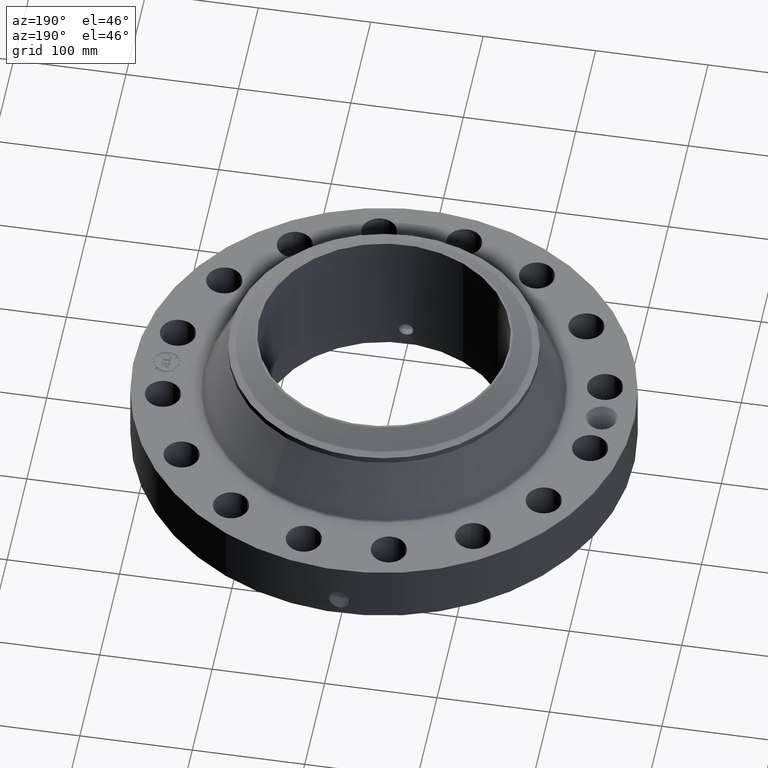
[diagram: clean part render]
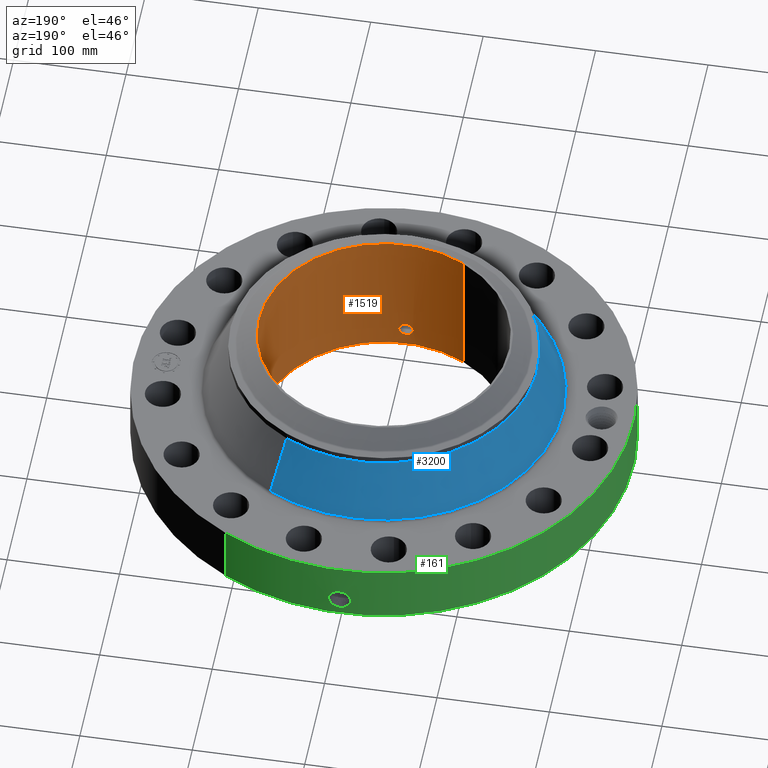
[diagram: same view with three faces highlighted in distinct colors, each labeled with its STEP entity id]
A machine part, auxiliary view with three faces highlighted in distinct colors.
Their STEP definitions:

[orange] entity #1519 — the highlighted cylindrical surface (partial cylindrical patch) has radius 111.125 mm, axis along (0, 0, -1).
#250=AXIS2_PLACEMENT_3D('Circle Axis2P3D',#248,#249,$) ;
#1450=AXIS2_PLACEMENT_3D('Cylinder Axis2P3D',#1447,#1448,#1449) ;
#1454=AXIS2_PLACEMENT_3D('Circle Axis2P3D',#1452,#1453,$) ;
#248=CARTESIAN_POINT('Axis2P3D Location',(0.,0.,0.250000000001)) ;
#252=CARTESIAN_POINT('Vertex',(2.0974867314,3.83942370829,0.250000000001)) ;
#254=CARTESIAN_POINT('Vertex',(-2.0974867314,-3.83942370829,0.250000000001)) ;
#1447=CARTESIAN_POINT('Axis2P3D Location',(0.,0.,2.69000000001)) ;
#1452=CARTESIAN_POINT('Axis2P3D Location',(0.,0.,5.13000000002)) ;
#1456=CARTESIAN_POINT('Vertex',(2.0974867314,3.83942370829,5.13000000002)) ;
#1458=CARTESIAN_POINT('Vertex',(-2.0974867314,-3.83942370829,5.13000000002)) ;
#1461=CARTESIAN_POINT('Line Origine',(2.0974867314,3.83942370829,2.69000000001)) ;
#1466=CARTESIAN_POINT('Line Origine',(-2.0974867314,-3.83942370829,2.69000000001)) ;
#1478=CARTESIAN_POINT('Control Point',(0.219395640473,-4.3694954575,0.820143615352)) ;
#1479=CARTESIAN_POINT('Control Point',(0.206921825538,-4.37012177709,0.79731045027)) ;
#1480=CARTESIAN_POINT('Control Point',(0.19147882994,-4.37085255723,0.776102242842)) ;
#1481=CARTESIAN_POINT('Control Point',(0.173346694087,-4.3716313096,0.757031420525)) ;
#1482=CARTESIAN_POINT('Control Point',(0.112147067857,-4.3738833864,0.707558297666)) ;
#1483=CARTESIAN_POINT('Control Point',(0.0350000945359,-4.37534654876,0.684030761429)) ;
#1484=CARTESIAN_POINT('Control Point',(-0.0195410405221,-4.37545612446,0.682387722914)) ;
#1485=CARTESIAN_POINT('Control Point',(-0.124120681145,-4.37384641052,0.707520149219)) ;
#1486=CARTESIAN_POINT('Control Point',(-0.203162153467,-4.37051308474,0.780409167068)) ;
#1487=CARTESIAN_POINT('Control Point',(-0.232145156531,-4.36887123256,0.826611315206)) ;
#1488=CARTESIAN_POINT('Control Point',(-0.255829519933,-4.36751853964,0.904772467492)) ;
#1489=CARTESIAN_POINT('Control Point',(-0.248302223506,-4.36794807787,0.984173351)) ;
#1490=CARTESIAN_POINT('Control Point',(-0.242067984341,-4.36830910102,1.01076700456)) ;
#1491=CARTESIAN_POINT('Control Point',(-0.23232742577,-4.36884614287,1.03618491045)) ;
#1492=CARTESIAN_POINT('Control Point',(-0.219395640473,-4.3694954575,1.05985638466)) ;
#1493=CARTESIAN_POINT('Vertex',(0.219395640473,-4.3694954575,0.820143615352)) ;
#1495=CARTESIAN_POINT('Vertex',(-0.219395640473,-4.3694954575,1.05985638466)) ;
#1499=CARTESIAN_POINT('Control Point',(-0.219395640473,-4.3694954575,1.05985638466)) ;
#1500=CARTESIAN_POINT('Control Point',(-0.206921825532,-4.37012177709,1.08268954975)) ;
#1501=CARTESIAN_POINT('Control Point',(-0.191478829924,-4.37085255723,1.10389775719)) ;
#1502=CARTESIAN_POINT('Control Point',(-0.173346694106,-4.3716313096,1.12296857947)) ;
#1503=CARTESIAN_POINT('Control Point',(-0.112147067873,-4.3738833864,1.17244170233)) ;
#1504=CARTESIAN_POINT('Control Point',(-0.0350000945468,-4.37534654876,1.19596923857)) ;
#1505=CARTESIAN_POINT('Control Point',(0.0195410405357,-4.37545612446,1.19761227709)) ;
#1506=CARTESIAN_POINT('Control Point',(0.124120681153,-4.37384641052,1.17247985078)) ;
#1507=CARTESIAN_POINT('Control Point',(0.203162153468,-4.37051308474,1.09959083294)) ;
#1508=CARTESIAN_POINT('Control Point',(0.232145156532,-4.36887123256,1.0533886848)) ;
#1509=CARTESIAN_POINT('Control Point',(0.255829519933,-4.36751853964,0.975227532515)) ;
#1510=CARTESIAN_POINT('Control Point',(0.248302223505,-4.36794807787,0.895826649007)) ;
#1511=CARTESIAN_POINT('Control Point',(0.242067984341,-4.36830910102,0.869232995447)) ;
#1512=CARTESIAN_POINT('Control Point',(0.23232742577,-4.36884614287,0.843815089557)) ;
#1513=CARTESIAN_POINT('Control Point',(0.219395640473,-4.3694954575,0.820143615352)) ;
#249=DIRECTION('Axis2P3D Direction',(0.,0.,-0.0393700787402)) ;
#1448=DIRECTION('Axis2P3D Direction',(0.,0.,-0.0393700787402)) ;
#1449=DIRECTION('Axis2P3D XDirection',(-0.0188750212049,-0.0345504945626,0.)) ;
#1453=DIRECTION('Axis2P3D Direction',(0.,0.,-0.0393700787402)) ;
#1462=DIRECTION('Vector Direction',(0.,0.,-0.0393700787402)) ;
#1467=DIRECTION('Vector Direction',(0.,0.,-0.0393700787402)) ;
#1463=VECTOR('Line Direction',#1462,0.0393700787402) ;
#1468=VECTOR('Line Direction',#1467,0.0393700787402) ;
#1472=ORIENTED_EDGE('',*,*,#1460,.F.) ;
#1473=ORIENTED_EDGE('',*,*,#1465,.T.) ;
#1474=ORIENTED_EDGE('',*,*,#256,.T.) ;
#1475=ORIENTED_EDGE('',*,*,#1470,.F.) ;
#1516=ORIENTED_EDGE('',*,*,#1497,.F.) ;
#1517=ORIENTED_EDGE('',*,*,#1514,.F.) ;
#1518=FACE_BOUND('',#1515,.T.) ;
#1519=ADVANCED_FACE('PartBody',(#1476,#1518),#1451,.F.) ;
#1477=B_SPLINE_CURVE_WITH_KNOTS('',5,(#1478,#1479,#1480,#1481,#1482,#1483,#1484,#1485,#1486,#1487,#1488,#1489,#1490,#1491,#1492),.UNSPECIFIED.,.F.,.U.,(6,3,3,3,6),(0.,4.67436526053,14.0217473979,23.3717136014,28.2176960262),.UNSPECIFIED.) ;
#1498=B_SPLINE_CURVE_WITH_KNOTS('',5,(#1499,#1500,#1501,#1502,#1503,#1504,#1505,#1506,#1507,#1508,#1509,#1510,#1511,#1512,#1513),.UNSPECIFIED.,.F.,.U.,(6,3,3,3,6),(0.,4.67436526282,14.021747399,23.3717136026,28.2176960273),.UNSPECIFIED.) ;
#251=CIRCLE('generated circle',#250,4.37500000002) ;
#1455=CIRCLE('generated circle',#1454,4.37500000002) ;
#1451=CYLINDRICAL_SURFACE('generated cylinder',#1450,4.37500000002) ;
#256=EDGE_CURVE('',#253,#255,#251,.T.) ;
#1460=EDGE_CURVE('',#1457,#1459,#1455,.T.) ;
#1465=EDGE_CURVE('',#1457,#253,#1464,.T.) ;
#1470=EDGE_CURVE('',#1459,#255,#1469,.T.) ;
#1497=EDGE_CURVE('',#1494,#1496,#1477,.T.) ;
#1514=EDGE_CURVE('',#1496,#1494,#1498,.T.) ;
#1471=EDGE_LOOP('',(#1472,#1473,#1474,#1475)) ;
#1515=EDGE_LOOP('',(#1516,#1517)) ;
#1476=FACE_OUTER_BOUND('',#1471,.T.) ;
#1464=LINE('Line',#1461,#1463) ;
#1469=LINE('Line',#1466,#1468) ;
#253=VERTEX_POINT('',#252) ;
#255=VERTEX_POINT('',#254) ;
#1457=VERTEX_POINT('',#1456) ;
#1459=VERTEX_POINT('',#1458) ;
#1494=VERTEX_POINT('',#1493) ;
#1496=VERTEX_POINT('',#1495) ;

[blue] entity #3200 — the highlighted conical surface has half-angle 25.437 deg.
#2434=AXIS2_PLACEMENT_3D('Circle Axis2P3D',#2432,#2433,$) ;
#3161=AXIS2_PLACEMENT_3D('Cone Axis2P3D',#3158,#3159,#3160) ;
#3191=AXIS2_PLACEMENT_3D('Circle Axis2P3D',#3189,#3190,$) ;
#2410=CARTESIAN_POINT('Vertex',(3.00956475796,5.50897133715,2.43845687897)) ;
#2417=CARTESIAN_POINT('Vertex',(-3.00956475796,-5.50897133715,2.43845687897)) ;
#2432=CARTESIAN_POINT('Axis2P3D Location',(0.,0.,2.43845687897)) ;
#3158=CARTESIAN_POINT('Axis2P3D Location',(0.,0.,4.33578537513)) ;
#3163=CARTESIAN_POINT('Line Origine',(2.79323851399,5.11298880367,3.38712112705)) ;
#3167=CARTESIAN_POINT('Vertex',(2.57691227001,4.71700627018,4.33578537513)) ;
#3174=CARTESIAN_POINT('Vertex',(-2.57691227001,-4.71700627018,4.33578537513)) ;
#3177=CARTESIAN_POINT('Line Origine',(-2.79323851399,-5.11298880367,3.38712112705)) ;
#3189=CARTESIAN_POINT('Axis2P3D Location',(0.,0.,4.33578537513)) ;
#2433=DIRECTION('Axis2P3D Direction',(0.,0.,-0.0393700787402)) ;
#3159=DIRECTION('Axis2P3D Direction',(0.,0.,-0.0393700787402)) ;
#3160=DIRECTION('Axis2P3D XDirection',(-0.0188750212049,-0.0345504945626,0.)) ;
#3164=DIRECTION('Vector Direction',(0.0081073125216,0.0148403360269,-0.0355533262901)) ;
#3178=DIRECTION('Vector Direction',(-0.0081073125216,-0.0148403360269,-0.0355533262901)) ;
#3190=DIRECTION('Axis2P3D Direction',(0.,0.,-0.0393700787402)) ;
#3165=VECTOR('Line Direction',#3164,0.0393700787402) ;
#3179=VECTOR('Line Direction',#3178,0.0393700787402) ;
#3195=ORIENTED_EDGE('',*,*,#2436,.F.) ;
#3196=ORIENTED_EDGE('',*,*,#3181,.T.) ;
#3197=ORIENTED_EDGE('',*,*,#3193,.T.) ;
#3198=ORIENTED_EDGE('',*,*,#3169,.F.) ;
#3200=ADVANCED_FACE('PartBody',(#3199),#3162,.T.) ;
#2435=CIRCLE('generated circle',#2434,6.27743938449) ;
#3192=CIRCLE('generated circle',#3191,5.37500000002) ;
#3162=CONICAL_SURFACE('Cone',#3161,5.37500000002,0.443967835701) ;
#2436=EDGE_CURVE('',#2418,#2411,#2435,.T.) ;
#3169=EDGE_CURVE('',#2411,#3168,#3166,.F.) ;
#3181=EDGE_CURVE('',#2418,#3175,#3180,.F.) ;
#3193=EDGE_CURVE('',#3175,#3168,#3192,.T.) ;
#3194=EDGE_LOOP('',(#3195,#3196,#3197,#3198)) ;
#3199=FACE_OUTER_BOUND('',#3194,.T.) ;
#3166=LINE('Line',#3163,#3165) ;
#3180=LINE('Line',#3177,#3179) ;
#2411=VERTEX_POINT('',#2410) ;
#2418=VERTEX_POINT('',#2417) ;
#3168=VERTEX_POINT('',#3167) ;
#3175=VERTEX_POINT('',#3174) ;

[green] entity #161 — the highlighted cylindrical surface (partial cylindrical patch) has radius 222.25 mm, axis along (0, 0, -1).
#38=AXIS2_PLACEMENT_3D('Cylinder Axis2P3D',#35,#36,#37) ;
#42=AXIS2_PLACEMENT_3D('Circle Axis2P3D',#40,#41,$) ;
#58=AXIS2_PLACEMENT_3D('Circle Axis2P3D',#56,#57,$) ;
#35=CARTESIAN_POINT('Axis2P3D Location',(0.,0.,2.69000000001)) ;
#40=CARTESIAN_POINT('Axis2P3D Location',(0.,0.,0.250000000001)) ;
#44=CARTESIAN_POINT('Vertex',(-4.1949734628,-7.67884741657,0.250000000001)) ;
#46=CARTESIAN_POINT('Vertex',(4.1949734628,7.67884741657,0.250000000001)) ;
#49=CARTESIAN_POINT('Line Origine',(-4.1949734628,-7.67884741657,1.31000000001)) ;
#53=CARTESIAN_POINT('Vertex',(-4.1949734628,-7.67884741657,2.37000000001)) ;
#56=CARTESIAN_POINT('Axis2P3D Location',(0.,0.,2.37000000001)) ;
#60=CARTESIAN_POINT('Vertex',(4.1949734628,7.67884741657,2.37000000001)) ;
#63=CARTESIAN_POINT('Line Origine',(4.1949734628,7.67884741657,1.31000000001)) ;
#75=CARTESIAN_POINT('Control Point',(-0.05810896252,8.74980704639,1.28931263406)) ;
#76=CARTESIAN_POINT('Control Point',(-0.0391512505111,8.74993294779,1.29247036247)) ;
#77=CARTESIAN_POINT('Control Point',(-0.019935391705,8.74999839758,1.29407954697)) ;
#78=CARTESIAN_POINT('Control Point',(-0.000716211350928,8.74999997072,1.29411849893)) ;
#79=CARTESIAN_POINT('Vertex',(-0.0580953077663,8.74980738873,1.28931519353)) ;
#81=CARTESIAN_POINT('Vertex',(-0.000716087123921,8.74999997073,1.29411850938)) ;
#85=CARTESIAN_POINT('Control Point',(-0.0580952083203,8.74980713772,1.28931463772)) ;
#86=CARTESIAN_POINT('Control Point',(-0.0974883504071,8.74954558307,1.28448275707)) ;
#87=CARTESIAN_POINT('Control Point',(-0.136130062226,8.749012969,1.27246972712)) ;
#88=CARTESIAN_POINT('Control Point',(-0.171610206376,8.74831697744,1.25416185771)) ;
#89=CARTESIAN_POINT('Vertex',(-0.171610206376,8.74831697744,1.25416185771)) ;
#93=CARTESIAN_POINT('Control Point',(-0.0302669452421,8.74994765199,0.531133858009)) ;
#94=CARTESIAN_POINT('Control Point',(-0.0865126331959,8.74975309253,0.538286206307)) ;
#95=CARTESIAN_POINT('Control Point',(-0.141163784515,8.74911210098,0.555899644813)) ;
#96=CARTESIAN_POINT('Control Point',(-0.191479474367,8.74808366127,0.583467506994)) ;
#97=CARTESIAN_POINT('Control Point',(-0.264585210923,8.74612690907,0.642883900397)) ;
#98=CARTESIAN_POINT('Control Point',(-0.316528471665,8.74430507465,0.719208877365)) ;
#99=CARTESIAN_POINT('Control Point',(-0.333583708491,8.74365536413,0.751880832634)) ;
#100=CARTESIAN_POINT('Control Point',(-0.368975032973,8.74224702288,0.844035268647)) ;
#101=CARTESIAN_POINT('Control Point',(-0.375098714798,8.74194353724,0.942677587425)) ;
#102=CARTESIAN_POINT('Control Point',(-0.366946053515,8.7423150234,1.00432648178)) ;
#103=CARTESIAN_POINT('Control Point',(-0.333642919186,8.7437418217,1.10228712862)) ;
#104=CARTESIAN_POINT('Control Point',(-0.270966418108,8.74586349314,1.18272418415)) ;
#105=CARTESIAN_POINT('Control Point',(-0.241231340849,8.74676440562,1.21147018012)) ;
#106=CARTESIAN_POINT('Control Point',(-0.207766138574,8.74760772936,1.23550527931)) ;
#107=CARTESIAN_POINT('Control Point',(-0.171610206376,8.74831697744,1.25416185771)) ;
#108=CARTESIAN_POINT('Vertex',(-0.0302669452421,8.74994765199,0.531133858009)) ;
#112=CARTESIAN_POINT('Control Point',(-0.0302669452421,8.74994765199,0.531133858009)) ;
#113=CARTESIAN_POINT('Control Point',(-0.020172125313,8.74998257099,0.530866678197)) ;
#114=CARTESIAN_POINT('Control Point',(-0.0100722732255,8.75000000318,0.530947102164)) ;
#115=CARTESIAN_POINT('Control Point',(2.72878355316E-006,8.75000000003,0.531374667805)) ;
#116=CARTESIAN_POINT('Vertex',(2.72878354006E-006,8.75000000003,0.531374667805)) ;
#120=CARTESIAN_POINT('Control Point',(0.19328241765,8.74786499139,0.58620888473)) ;
#121=CARTESIAN_POINT('Control Point',(0.14925996288,8.74883765918,0.561336698188)) ;
#122=CARTESIAN_POINT('Control Point',(0.101168835308,8.74960564366,0.543535968941)) ;
#123=CARTESIAN_POINT('Control Point',(0.0508246752075,8.74999998419,0.533531464398)) ;
#124=CARTESIAN_POINT('Control Point',(2.72878352207E-006,8.75000000003,0.531374667805)) ;
#125=CARTESIAN_POINT('Vertex',(0.19328241765,8.74786499139,0.58620888473)) ;
#129=CARTESIAN_POINT('Control Point',(0.19328241765,8.74786499139,0.58620888473)) ;
#130=CARTESIAN_POINT('Control Point',(0.222320018151,8.74722341112,0.602614798415)) ;
#131=CARTESIAN_POINT('Control Point',(0.249702852795,8.74649784976,0.621904373396)) ;
#132=CARTESIAN_POINT('Control Point',(0.275025900486,8.74572453905,0.643907791802)) ;
#133=CARTESIAN_POINT('Control Point',(0.341959851672,8.74345928947,0.715550689571)) ;
#134=CARTESIAN_POINT('Control Point',(0.384721494946,8.74157999932,0.805221661543)) ;
#135=CARTESIAN_POINT('Control Point',(0.399824078795,8.74084549763,0.869596656361)) ;
#136=CARTESIAN_POINT('Control Point',(0.400741236146,8.74084616963,0.983900944968)) ;
#137=CARTESIAN_POINT('Control Point',(0.360682761481,8.74259093649,1.08862858385)) ;
#138=CARTESIAN_POINT('Control Point',(0.336434934045,8.74359787656,1.13009590905)) ;
#139=CARTESIAN_POINT('Control Point',(0.267541246717,8.74613174572,1.21398892366)) ;
#140=CARTESIAN_POINT('Control Point',(0.17460187633,8.74851033483,1.26870826521)) ;
#141=CARTESIAN_POINT('Control Point',(0.117427738811,8.74951483398,1.28858356661)) ;
#142=CARTESIAN_POINT('Control Point',(0.0582715844828,8.75000017228,1.29701111921)) ;
#143=CARTESIAN_POINT('Control Point',(-2.5857935541E-005,8.75,1.29415298432)) ;
#144=CARTESIAN_POINT('Vertex',(-2.58579355366E-005,8.75,1.29415298432)) ;
#148=CARTESIAN_POINT('Control Point',(-0.000716087113735,8.74999997073,1.29411850936)) ;
#149=CARTESIAN_POINT('Control Point',(-0.000370996570186,8.74999999898,1.2941360633)) ;
#150=CARTESIAN_POINT('Control Point',(-2.58579413603E-005,8.75,1.29415298432)) ;
#36=DIRECTION('Axis2P3D Direction',(0.,0.,-0.0393700787402)) ;
#37=DIRECTION('Axis2P3D XDirection',(0.0188750212049,0.0345504945626,0.)) ;
#41=DIRECTION('Axis2P3D Direction',(0.,0.,-0.0393700787402)) ;
#50=DIRECTION('Vector Direction',(0.,0.,-0.0393700787402)) ;
#57=DIRECTION('Axis2P3D Direction',(0.,0.,-0.0393700787402)) ;
#64=DIRECTION('Vector Direction',(0.,0.,-0.0393700787402)) ;
#51=VECTOR('Line Direction',#50,0.0393700787402) ;
#65=VECTOR('Line Direction',#64,0.0393700787402) ;
#69=ORIENTED_EDGE('',*,*,#48,.F.) ;
#70=ORIENTED_EDGE('',*,*,#55,.T.) ;
#71=ORIENTED_EDGE('',*,*,#62,.T.) ;
#72=ORIENTED_EDGE('',*,*,#67,.F.) ;
#153=ORIENTED_EDGE('',*,*,#83,.F.) ;
#154=ORIENTED_EDGE('',*,*,#91,.T.) ;
#155=ORIENTED_EDGE('',*,*,#110,.F.) ;
#156=ORIENTED_EDGE('',*,*,#118,.T.) ;
#157=ORIENTED_EDGE('',*,*,#127,.F.) ;
#158=ORIENTED_EDGE('',*,*,#146,.T.) ;
#159=ORIENTED_EDGE('',*,*,#151,.F.) ;
#160=FACE_BOUND('',#152,.T.) ;
#161=ADVANCED_FACE('PartBody',(#73,#160),#39,.T.) ;
#74=B_SPLINE_CURVE_WITH_KNOTS('',3,(#75,#76,#77,#78),.UNSPECIFIED.,.F.,.U.,(4,4),(4.3891638749,6.52135751631),.UNSPECIFIED.) ;
#84=B_SPLINE_CURVE_WITH_KNOTS('',3,(#85,#86,#87,#88),.UNSPECIFIED.,.F.,.U.,(4,4),(0.,4.45941834655),.UNSPECIFIED.) ;
#92=B_SPLINE_CURVE_WITH_KNOTS('',5,(#93,#94,#95,#96,#97,#98,#99,#100,#101,#102,#103,#104,#105,#106,#107),.UNSPECIFIED.,.F.,.U.,(6,3,3,3,6),(0.,9.85389268551,16.4310811958,27.5941599214,35.1680876112),.UNSPECIFIED.) ;
#111=B_SPLINE_CURVE_WITH_KNOTS('',3,(#112,#113,#114,#115),.UNSPECIFIED.,.F.,.U.,(4,4),(0.,1.05295553536),.UNSPECIFIED.) ;
#119=B_SPLINE_CURVE_WITH_KNOTS('',4,(#120,#121,#122,#123,#124),.UNSPECIFIED.,.F.,.U.,(5,5),(0.,7.08198368507),.UNSPECIFIED.) ;
#128=B_SPLINE_CURVE_WITH_KNOTS('',5,(#129,#130,#131,#132,#133,#134,#135,#136,#137,#138,#139,#140,#141,#142,#143),.UNSPECIFIED.,.F.,.U.,(6,3,3,3,6),(0.,5.83917379298,17.1007627961,25.5637753097,36.460776186),.UNSPECIFIED.) ;
#147=B_SPLINE_CURVE_WITH_KNOTS('',2,(#148,#149,#150),.UNSPECIFIED.,.F.,.U.,(3,3),(1.04631464727,1.07212007524),.UNSPECIFIED.) ;
#43=CIRCLE('generated circle',#42,8.75000000003) ;
#59=CIRCLE('generated circle',#58,8.75000000003) ;
#39=CYLINDRICAL_SURFACE('generated cylinder',#38,8.75000000003) ;
#48=EDGE_CURVE('',#45,#47,#43,.T.) ;
#55=EDGE_CURVE('',#45,#54,#52,.F.) ;
#62=EDGE_CURVE('',#54,#61,#59,.T.) ;
#67=EDGE_CURVE('',#47,#61,#66,.F.) ;
#83=EDGE_CURVE('',#80,#82,#74,.T.) ;
#91=EDGE_CURVE('',#80,#90,#84,.T.) ;
#110=EDGE_CURVE('',#109,#90,#92,.T.) ;
#118=EDGE_CURVE('',#109,#117,#111,.T.) ;
#127=EDGE_CURVE('',#126,#117,#119,.T.) ;
#146=EDGE_CURVE('',#126,#145,#128,.T.) ;
#151=EDGE_CURVE('',#82,#145,#147,.T.) ;
#68=EDGE_LOOP('',(#69,#70,#71,#72)) ;
#152=EDGE_LOOP('',(#153,#154,#155,#156,#157,#158,#159)) ;
#73=FACE_OUTER_BOUND('',#68,.T.) ;
#52=LINE('Line',#49,#51) ;
#66=LINE('Line',#63,#65) ;
#45=VERTEX_POINT('',#44) ;
#47=VERTEX_POINT('',#46) ;
#54=VERTEX_POINT('',#53) ;
#61=VERTEX_POINT('',#60) ;
#80=VERTEX_POINT('',#79) ;
#82=VERTEX_POINT('',#81) ;
#90=VERTEX_POINT('',#89) ;
#109=VERTEX_POINT('',#108) ;
#117=VERTEX_POINT('',#116) ;
#126=VERTEX_POINT('',#125) ;
#145=VERTEX_POINT('',#144) ;